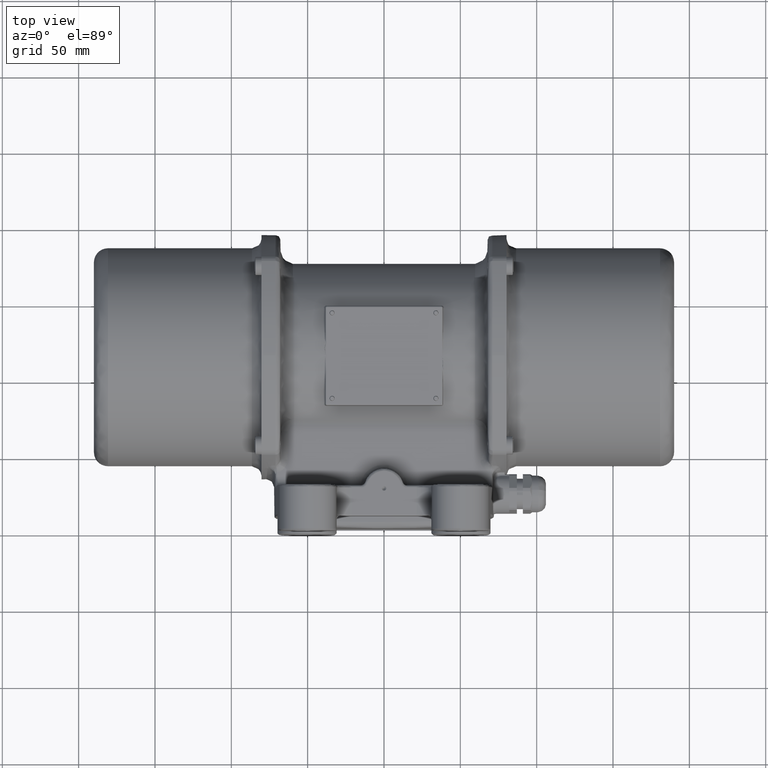
[diagram: clean part render]
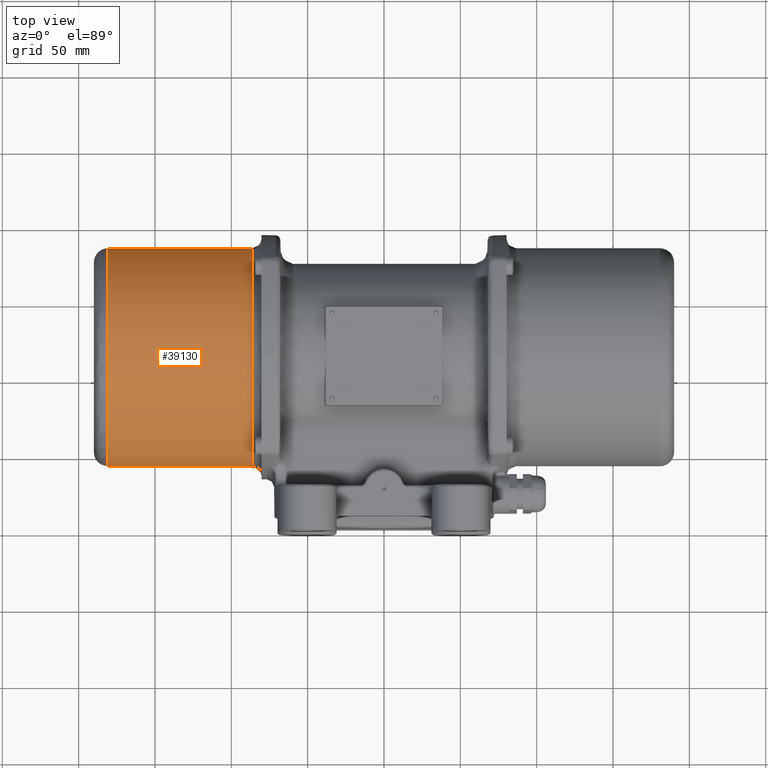
[diagram: same view with one face highlighted and labeled with its STEP entity id]
A machine part, top view. The second image highlights one B-rep face of the part: STEP entity #39130.
In plain terms, the highlighted cylindrical surface (partial cylindrical patch) has radius 71.4 mm, axis along (-1, 0, -0).
Its self-contained STEP definition (entity closure, byte-faithful):
#4006 = VERTEX_POINT ( 'NONE', #134761 ) ;
#9621 = CARTESIAN_POINT ( 'NONE',  ( -180.7999999999996700, 186.4000000000020000, -5.993976821481146300E-012 ) ) ;
#22207 = CIRCLE ( 'NONE', #33356, 71.39999999999439200 ) ;
#22256 = CARTESIAN_POINT ( 'NONE',  ( -86.49999999999499800, 186.3999999999924200, -5.993976821481147100E-012 ) ) ;
#27589 = DIRECTION ( 'NONE',  ( -1.000000000000000000, 1.022580077287964000E-013, -5.620270106084609400E-017 ) ) ;
#28055 = LINE ( 'NONE', #56049, #73789 ) ;
#29766 = AXIS2_PLACEMENT_3D ( 'NONE', #145746, #88716, #33141 ) ;
#33141 = DIRECTION ( 'NONE',  ( -1.022369241864282500E-013, -1.000000000000000000, -5.551115123125987300E-017 ) ) ;
#33356 = AXIS2_PLACEMENT_3D ( 'NONE', #61567, #27589, #72841 ) ;
#39130 = ADVANCED_FACE ( 'NONE', ( #139716 ), #49973, .T. ) ;
#49845 = ORIENTED_EDGE ( 'NONE', *, *, #73026, .T. ) ;
#49973 = CYLINDRICAL_SURFACE ( 'NONE', #29766, 71.39999999999439200 ) ;
#55346 = VERTEX_POINT ( 'NONE', #9621 ) ;
#55908 = CARTESIAN_POINT ( 'NONE',  ( -190.0000000000177900, 43.60000000001421200, -6.013814814227661400E-012 ) ) ;
#56049 = CARTESIAN_POINT ( 'NONE',  ( -190.0000000000031800, 186.4000000000030200, -5.997143843685927100E-012 ) ) ;
#57985 = DIRECTION ( 'NONE',  ( 1.000000000000000000, -1.022580077287964000E-013, 5.620270106084609400E-017 ) ) ;
#61567 = CARTESIAN_POINT ( 'NONE',  ( -86.50000000000230200, 114.9999999999980000, -6.004034338469950700E-012 ) ) ;
#62046 = LINE ( 'NONE', #55908, #130594 ) ;
#71419 = AXIS2_PLACEMENT_3D ( 'NONE', #102769, #57985, #113584 ) ;
#72841 = DIRECTION ( 'NONE',  ( -1.022369241864282500E-013, -1.000000000000000000, -5.551115123125987300E-017 ) ) ;
#73026 = EDGE_CURVE ( 'NONE', #55346, #4006, #91978, .T. ) ;
#73789 = VECTOR ( 'NONE', #88088, 1000.000000000000000 ) ;
#76969 = VERTEX_POINT ( 'NONE', #102854 ) ;
#80348 = EDGE_CURVE ( 'NONE', #76969, #121485, #22207, .T. ) ;
#88088 = DIRECTION ( 'NONE',  ( -1.000000000000000000, 1.022580077287964000E-013, -5.620270106084609400E-017 ) ) ;
#88716 = DIRECTION ( 'NONE',  ( -1.000000000000000000, 1.022580077287964000E-013, -5.620270106084609400E-017 ) ) ;
#89295 = EDGE_CURVE ( 'NONE', #76969, #4006, #62046, .T. ) ;
#91978 = CIRCLE ( 'NONE', #71419, 71.39999999999439200 ) ;
#102769 = CARTESIAN_POINT ( 'NONE',  ( -180.8000000000069700, 115.0000000000076200, -6.009334253179989900E-012 ) ) ;
#102854 = CARTESIAN_POINT ( 'NONE',  ( -86.50000000000959200, 43.60000000000359700, -6.007997834667862200E-012 ) ) ;
#108810 = ORIENTED_EDGE ( 'NONE', *, *, #139526, .T. ) ;
#113584 = DIRECTION ( 'NONE',  ( -1.022369241864282500E-013, -1.000000000000000000, -5.551115123125987300E-017 ) ) ;
#116195 = ORIENTED_EDGE ( 'NONE', *, *, #89295, .F. ) ;
#120948 = ORIENTED_EDGE ( 'NONE', *, *, #80348, .T. ) ;
#121485 = VERTEX_POINT ( 'NONE', #22256 ) ;
#130594 = VECTOR ( 'NONE', #135051, 1000.000000000000000 ) ;
#134761 = CARTESIAN_POINT ( 'NONE',  ( -180.8000000000142800, 43.60000000001321000, -6.013297749377901400E-012 ) ) ;
#135051 = DIRECTION ( 'NONE',  ( -1.000000000000000000, 1.022580077287964000E-013, -5.620270106084609400E-017 ) ) ;
#139526 = EDGE_CURVE ( 'NONE', #121485, #55346, #28055, .T. ) ;
#139716 = FACE_OUTER_BOUND ( 'NONE', #140661, .T. ) ;
#140661 = EDGE_LOOP ( 'NONE', ( #120948, #108810, #49845, #116195 ) ) ;
#145746 = CARTESIAN_POINT ( 'NONE',  ( -190.0000000000104900, 115.0000000000086100, -6.009851318029749900E-012 ) ) ;